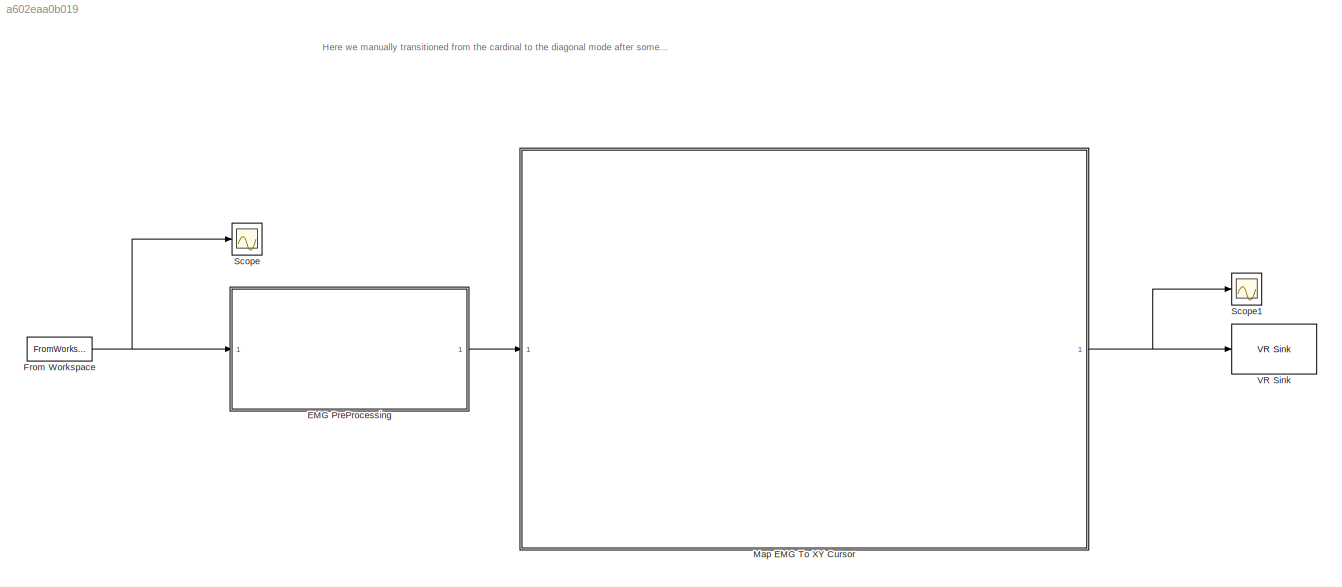
MODEL slx_a602eaa0b019
KIND model
CONFIG AbsTol = auto
CONFIG EnableMultiTasking = off
CONFIG FixedStep = auto
CONFIG InitFcn = disp('Loading EMG data...');\ndata = load('ES2_emg.mat');\n\nsignals = data.ES2_emg.signals; %30001x4\n\n% Create time vector\nTs = 0.001; \n\nnum_samples = size(signals, 1);\n\ntime_vector = (0:num_samples-1)' * Ts;\n\nraw_signals = [time_vector, signals];     % [Time, Data] 30001x5\n\ndisp('Data loaded and time vector created.');\n\n\n%% FILTER DESIGN\n\nFs = 1/Ts;     % 1000 Hz\n\ndisp('Designing filters ...');\n\n% ...<+1156ch>
CONFIG MaxStep = auto
CONFIG MinStep = auto
CONFIG RelTol = 1e-3
CONFIG SampleTimeConstraint = Unconstrained
CONFIG SolverName = VariableStepAuto
CONFIG StartTime = 0.0
CONFIG StopTime = 30
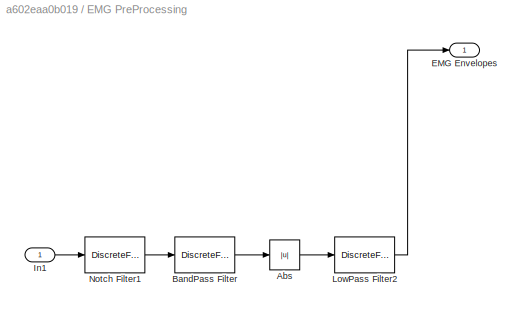
BLOCK [SubSystem] EMG PreProcessing
BLOCK [Abs] EMG PreProcessing/Abs
  SaturateOnIntegerOverflow = off
BLOCK [DiscreteFilter] EMG PreProcessing/BandPass Filter
  CloseFcn = dspblkCoreblockFVToolHelper(gcbh,'close');
  CopyFcn = dspblkCoreblockFVToolHelper(gcbh,'copy');
  DeleteFcn = dspblkCoreblockFVToolHelper(gcbh,'close');
  Denominator = a_band
  InputPortMap = u0
  LoadFcn = dspblkCoreblockFVToolHelper(gcbh,'load');
  ModelCloseFcn = dspblkCoreblockFVToolHelper(gcbh,'close');
  Numerator = b_band
  PostSaveFcn = dspblkCoreblockFVToolHelper(gcbh,'postsave');
  PreSaveFcn = dspblkCoreblockFVToolHelper(gcbh,'presave');
BLOCK [Outport] EMG PreProcessing/EMG Envelopes
BLOCK [Inport] EMG PreProcessing/In1
BLOCK [DiscreteFilter] EMG PreProcessing/LowPass Filter2
  Denominator = a_low
  InputPortMap = u0
  Numerator = b_low
BLOCK [DiscreteFilter] EMG PreProcessing/Notch Filter1
  CloseFcn = dspblkCoreblockFVToolHelper(gcbh,'close');
  CopyFcn = dspblkCoreblockFVToolHelper(gcbh,'copy');
  DeleteFcn = dspblkCoreblockFVToolHelper(gcbh,'close');
  Denominator = a_notch
  InputPortMap = u0
  LoadFcn = dspblkCoreblockFVToolHelper(gcbh,'load');
  ModelCloseFcn = dspblkCoreblockFVToolHelper(gcbh,'close');
  Numerator = b_notch
  PostSaveFcn = dspblkCoreblockFVToolHelper(gcbh,'postsave');
  PreSaveFcn = dspblkCoreblockFVToolHelper(gcbh,'presave');
BLOCK [FromWorkspace] From Workspace
  Interpolate = off
  OutputAfterFinalValue = Holding final value
  SampleTime = 0.001
  VariableName = raw_signals
  ZeroCross = off
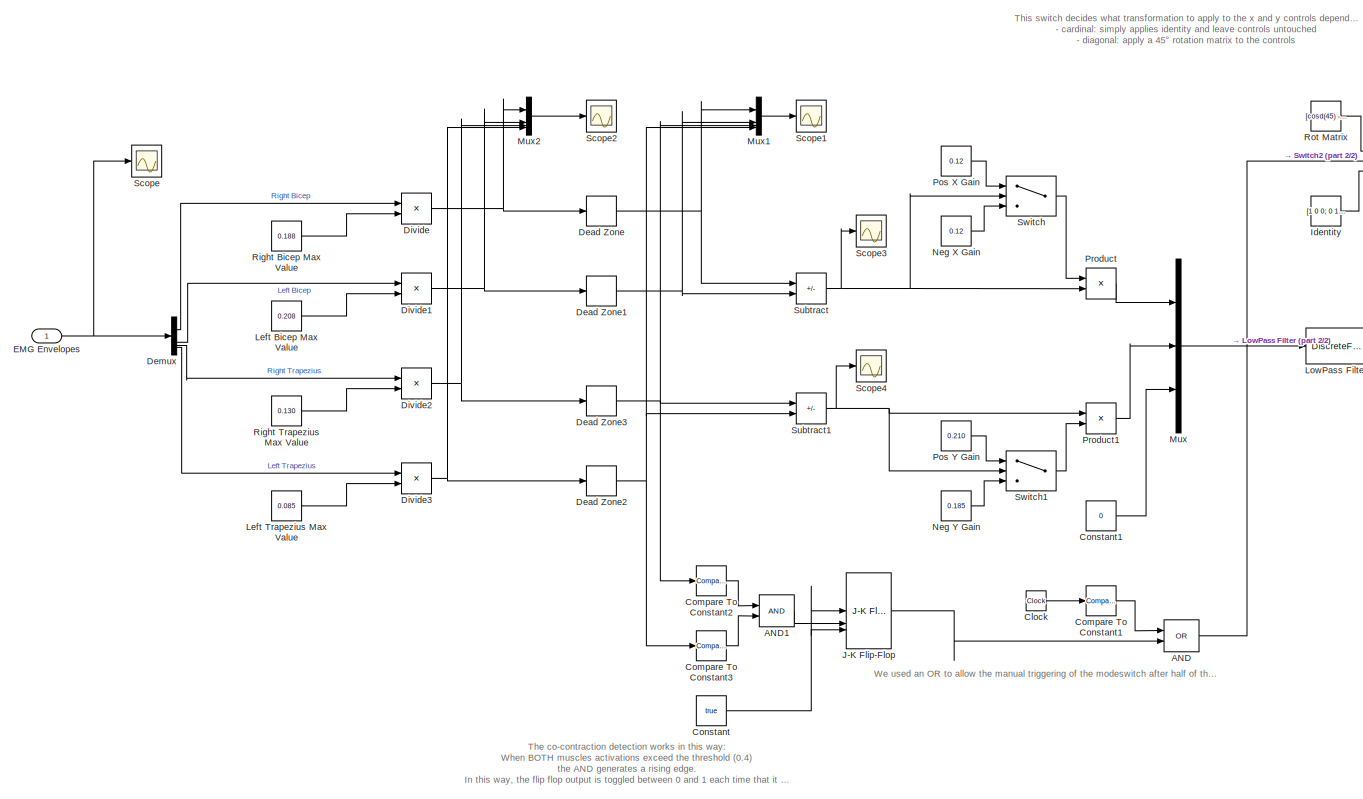
[diagram: Map EMG To XY Cursor - part 1/2, most of the canvas]
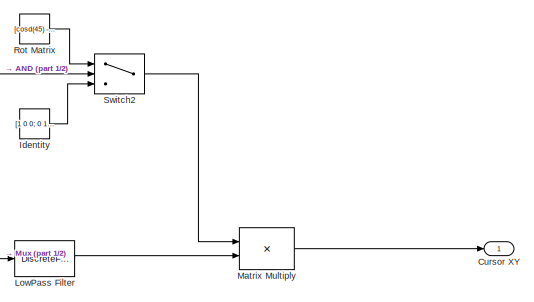
[diagram: Map EMG To XY Cursor - part 2/2, top right region]
BLOCK [SubSystem] Map EMG To XY Cursor
BLOCK [Logic] Map EMG To XY Cursor/AND
  AllPortsSameDT = off
  IconShape = distinctive
  Operator = OR
  OutDataTypeStr = boolean
BLOCK [Logic] Map EMG To XY Cursor/AND1
  AllPortsSameDT = off
  IconShape = distinctive
  OutDataTypeStr = boolean
BLOCK [Clock] Map EMG To XY Cursor/Clock
BLOCK [Reference] Map EMG To XY Cursor/Compare To Constant1  REF=simulink/Logic and Bit
Operations/Compare
To Constant
  SourceBlock = simulink/Logic and Bit\nOperations/Compare\nTo Constant
  SourceType = Compare To Constant
BLOCK [Reference] Map EMG To XY Cursor/Compare To Constant2  REF=simulink/Logic and Bit
Operations/Compare
To Constant
  SourceBlock = simulink/Logic and Bit\nOperations/Compare\nTo Constant
  SourceType = Compare To Constant
BLOCK [Reference] Map EMG To XY Cursor/Compare To Constant3  REF=simulink/Logic and Bit
Operations/Compare
To Constant
  SourceBlock = simulink/Logic and Bit\nOperations/Compare\nTo Constant
  SourceType = Compare To Constant
BLOCK [Constant] Map EMG To XY Cursor/Constant
  Value = true
BLOCK [Constant] Map EMG To XY Cursor/Constant1
  Value = 0
BLOCK [Outport] Map EMG To XY Cursor/Cursor XY
BLOCK [DeadZone] Map EMG To XY Cursor/Dead Zone
  LowerValue = 0
  UpperValue = 0.1
BLOCK [DeadZone] Map EMG To XY Cursor/Dead Zone1
  LowerValue = 0
  UpperValue = 0.1
BLOCK [DeadZone] Map EMG To XY Cursor/Dead Zone2
  LowerValue = 0
  UpperValue = 0.3
BLOCK [DeadZone] Map EMG To XY Cursor/Dead Zone3
  LowerValue = 0
  UpperValue = 0.4
BLOCK [Demux] Map EMG To XY Cursor/Demux
BLOCK [Product] Map EMG To XY Cursor/Divide
  Inputs = */
BLOCK [Product] Map EMG To XY Cursor/Divide1
  Inputs = */
BLOCK [Product] Map EMG To XY Cursor/Divide2
  Inputs = */
BLOCK [Product] Map EMG To XY Cursor/Divide3
  Inputs = */
BLOCK [Inport] Map EMG To XY Cursor/EMG Envelopes
BLOCK [Constant] Map EMG To XY Cursor/Identity
  Value = [1 0 0; 0 1 0; 0 0 1]
BLOCK [Reference] Map EMG To XY Cursor/J-K Flip-Flop  REF=simulink_extras/Flip Flops/J-K
Flip-Flop
  SourceBlock = simulink_extras/Flip Flops/J-K\nFlip-Flop
  SourceType = JKFlipFlop
BLOCK [Constant] Map EMG To XY Cursor/Left Bicep Max Value
  Value = 0.208
BLOCK [Constant] Map EMG To XY Cursor/Left Trapezius Max Value
  Value = 0.085
BLOCK [DiscreteFilter] Map EMG To XY Cursor/LowPass Filter
  CloseFcn = dspblkCoreblockFVToolHelper(gcbh,'close');
  CopyFcn = dspblkCoreblockFVToolHelper(gcbh,'copy');
  DeleteFcn = dspblkCoreblockFVToolHelper(gcbh,'close');
  Denominator = a_low2
  InputPortMap = u0
  LoadFcn = dspblkCoreblockFVToolHelper(gcbh,'load');
  ModelCloseFcn = dspblkCoreblockFVToolHelper(gcbh,'close');
  Numerator = b_low2
  PostSaveFcn = dspblkCoreblockFVToolHelper(gcbh,'postsave');
  PreSaveFcn = dspblkCoreblockFVToolHelper(gcbh,'presave');
BLOCK [Product] Map EMG To XY Cursor/Matrix Multiply
  Multiplication = Matrix(*)
BLOCK [Mux] Map EMG To XY Cursor/Mux
  DisplayOption = bar
  Inputs = 3
BLOCK [Mux] Map EMG To XY Cursor/Mux1
  DisplayOption = bar
BLOCK [Mux] Map EMG To XY Cursor/Mux2
  DisplayOption = bar
BLOCK [Constant] Map EMG To XY Cursor/Neg X Gain
  Value = 0.12
BLOCK [Constant] Map EMG To XY Cursor/Neg Y Gain
  Value = 0.185
BLOCK [Constant] Map EMG To XY Cursor/Pos X Gain
  Value = 0.12
BLOCK [Constant] Map EMG To XY Cursor/Pos Y Gain
  Value = 0.210
BLOCK [Product] Map EMG To XY Cursor/Product
BLOCK [Product] Map EMG To XY Cursor/Product1
BLOCK [Constant] Map EMG To XY Cursor/Right Bicep Max Value
  Value = 0.188
BLOCK [Constant] Map EMG To XY Cursor/Right Trapezius Max Value
  Value = 0.130
BLOCK [Constant] Map EMG To XY Cursor/Rot Matrix
  Value = [cosd(45) -sind(45) 0; sind(45) cosd(45) 0; 0 0 1]
BLOCK [Scope] Map EMG To XY Cursor/Scope
  Floating = off
  NumInputPorts = 1
  ScopeSpecificationString = Simulink.scopes.TimeScopeBlockCfg('CurrentConfiguration', extmgr.ConfigurationSet(extmgr.Configuration('Core','General UI',true),extmgr.Configuration('Core','Source UI',true),extmgr.Configuration('Sources','WiredSimulink',true,'DataLoggingVariableName','ScopeData1'),extmgr.Configuration('Visuals','Time Domain',true,'PlotType','Line','SerializedDisplays',{struct('MinYLimReal','-0.03471','MaxYLimRea...<+2132ch>
BLOCK [Scope] Map EMG To XY Cursor/Scope1
  Floating = off
  NumInputPorts = 1
  ScopeSpecificationString = Simulink.scopes.TimeScopeBlockCfg('CurrentConfiguration', extmgr.ConfigurationSet(extmgr.Configuration('Core','General UI',true),extmgr.Configuration('Core','Source UI',true),extmgr.Configuration('Sources','WiredSimulink',true,'DataLoggingVariableName','ScopeData3'),extmgr.Configuration('Visuals','Time Domain',true,'SerializedDisplays',{struct('MinYLimReal','-0.1247','MaxYLimReal','1.12231','YLabe...<+2192ch>
BLOCK [Scope] Map EMG To XY Cursor/Scope2
  Floating = off
  NumInputPorts = 1
  ScopeSpecificationString = Simulink.scopes.TimeScopeBlockCfg('CurrentConfiguration', extmgr.ConfigurationSet(extmgr.Configuration('Core','General UI',true),extmgr.Configuration('Core','Source UI',true),extmgr.Configuration('Sources','WiredSimulink',true,'DataLoggingVariableName','ScopeData3'),extmgr.Configuration('Visuals','Time Domain',true,'PlotType','Line','SerializedDisplays',{struct('MinYLimReal','-0.12176','MaxYLimRea...<+2211ch>
BLOCK [Scope] Map EMG To XY Cursor/Scope3
  Floating = off
  NumInputPorts = 1
  ScopeSpecificationString = Simulink.scopes.TimeScopeBlockCfg('CurrentConfiguration', extmgr.ConfigurationSet(extmgr.Configuration('Core','General UI',true),extmgr.Configuration('Core','Source UI',true),extmgr.Configuration('Sources','WiredSimulink',true,'DataLoggingVariableName','ScopeData5'),extmgr.Configuration('Visuals','Time Domain',true,'SerializedDisplays',{struct('MinYLimReal','-1.04981','MaxYLimReal','1.03377','YLab...<+2112ch>
BLOCK [Scope] Map EMG To XY Cursor/Scope4
  Floating = off
  NumInputPorts = 1
  ScopeSpecificationString = Simulink.scopes.TimeScopeBlockCfg('CurrentConfiguration', extmgr.ConfigurationSet(extmgr.Configuration('Core','General UI',true),extmgr.Configuration('Core','Source UI',true),extmgr.Configuration('Sources','WiredSimulink',true,'DataLoggingVariableName','ScopeData6'),extmgr.Configuration('Visuals','Time Domain',true,'SerializedDisplays',{struct('MinYLimReal','-0.72831','MaxYLimReal','0.66413','YLab...<+2443ch>
BLOCK [Sum] Map EMG To XY Cursor/Subtract
  IconShape = rectangular
  Inputs = +-
BLOCK [Sum] Map EMG To XY Cursor/Subtract1
  IconShape = rectangular
  Inputs = +-
BLOCK [Switch] Map EMG To XY Cursor/Switch
  InputSameDT = off
  SaturateOnIntegerOverflow = off
BLOCK [Switch] Map EMG To XY Cursor/Switch1
  InputSameDT = off
  SaturateOnIntegerOverflow = off
BLOCK [Switch] Map EMG To XY Cursor/Switch2
  Criteria = u2 > Threshold
  InputSameDT = off
  SaturateOnIntegerOverflow = off
BLOCK [Scope] Scope
  Floating = off
  NumInputPorts = 1
  ScopeSpecificationString = Simulink.scopes.TimeScopeBlockCfg('CurrentConfiguration', extmgr.ConfigurationSet(extmgr.Configuration('Core','General UI',true),extmgr.Configuration('Core','Source UI',true),extmgr.Configuration('Sources','WiredSimulink',true,'DataLoggingVariableName','ScopeData2'),extmgr.Configuration('Visuals','Time Domain',true,'SerializedDisplays',{struct('MinYLimReal','-1.20466','MaxYLimReal','1.72766','YLab...<+1691ch>
BLOCK [Scope] Scope1
  Floating = off
  NumInputPorts = 1
  ScopeSpecificationString = Simulink.scopes.TimeScopeBlockCfg('CurrentConfiguration', extmgr.ConfigurationSet(extmgr.Configuration('Core','General UI',true),extmgr.Configuration('Core','Source UI',true),extmgr.Configuration('Sources','WiredSimulink',true),extmgr.Configuration('Visuals','Time Domain',true,'SerializedDisplays',{struct('MinYLimReal','-0.12422','MaxYLimReal','0.12055','YLabelReal','','MinYLimMag','0.00000','MaxY...<+1988ch>
BLOCK [Reference] VR Sink  REF=vrlib/VR Sink
  InstantiateOnLoad = on
  SourceBlock = vrlib/VR Sink
  SourceType = Virtual Reality Sink
ANNOTATION (root): Here we manually transitioned from the cardinal to the diagonal mode after some time in order to reach all the balls, anyway in a real contest we would for example use the cocontraction of the trapezius muscles to toggle between the two different modalities. While never actually used in this specific case as there are no clean co-contractions in the data, we implemented a simple co-contraction det...<+49ch>
ANNOTATION Map EMG To XY Cursor: We used an OR to allow the manual triggering of the modeswitch after half of the simulation has passed if a co-contraction is not detected, as is the case with this specific data
ANNOTATION Map EMG To XY Cursor: The co-contraction detection works in this way: When BOTH muscles activations exceed the threshold (0.4) the AND generates a rising edge. In this way, the flip flop output is toggled between 0 and 1 each time that it receives a rising edge signal (and is not triggered instead by the falling edge one)
ANNOTATION Map EMG To XY Cursor: This switch decides what transformation to apply to the x and y controls depending on the mode: - cardinal: simply applies identity and leave controls untouched - diagonal: apply a 45° rotation matrix to the controls
LINE EMG PreProcessing/Abs:1 -> EMG PreProcessing/LowPass Filter2:1
LINE EMG PreProcessing/BandPass Filter:1 -> EMG PreProcessing/Abs:1
LINE EMG PreProcessing/In1:1 -> EMG PreProcessing/Notch Filter1:1
LINE EMG PreProcessing/LowPass Filter2:1 -> EMG PreProcessing/EMG Envelopes:1
LINE EMG PreProcessing/Notch Filter1:1 -> EMG PreProcessing/BandPass Filter:1
LINE EMG PreProcessing:1 -> Map EMG To XY Cursor:1
NET From Workspace:1 -> EMG PreProcessing:1, Scope:1
LINE Map EMG To XY Cursor/AND1:1 -> Map EMG To XY Cursor/J-K Flip-Flop:2
LINE Map EMG To XY Cursor/AND:1 -> Map EMG To XY Cursor/Switch2:2
LINE Map EMG To XY Cursor/Clock:1 -> Map EMG To XY Cursor/Compare To Constant1:1
LINE Map EMG To XY Cursor/Compare To Constant1:1 -> Map EMG To XY Cursor/AND:1
LINE Map EMG To XY Cursor/Compare To Constant2:1 -> Map EMG To XY Cursor/AND1:1
LINE Map EMG To XY Cursor/Compare To Constant3:1 -> Map EMG To XY Cursor/AND1:2
LINE Map EMG To XY Cursor/Constant1:1 -> Map EMG To XY Cursor/Mux:3
NET Map EMG To XY Cursor/Constant:1 -> Map EMG To XY Cursor/J-K Flip-Flop:1, Map EMG To XY Cursor/J-K Flip-Flop:3
NET Map EMG To XY Cursor/Dead Zone1:1 -> Map EMG To XY Cursor/Mux1:2, Map EMG To XY Cursor/Subtract:2
NET Map EMG To XY Cursor/Dead Zone2:1 -> Map EMG To XY Cursor/Compare To Constant3:1, Map EMG To XY Cursor/Mux1:4, Map EMG To XY Cursor/Subtract1:2
NET Map EMG To XY Cursor/Dead Zone3:1 -> Map EMG To XY Cursor/Compare To Constant2:1, Map EMG To XY Cursor/Mux1:3, Map EMG To XY Cursor/Subtract1:1
NET Map EMG To XY Cursor/Dead Zone:1 -> Map EMG To XY Cursor/Mux1:1, Map EMG To XY Cursor/Subtract:1
LINE Map EMG To XY Cursor/Demux:1 -> Map EMG To XY Cursor/Divide:1
LINE Map EMG To XY Cursor/Demux:2 -> Map EMG To XY Cursor/Divide1:1
LINE Map EMG To XY Cursor/Demux:3 -> Map EMG To XY Cursor/Divide2:1
LINE Map EMG To XY Cursor/Demux:4 -> Map EMG To XY Cursor/Divide3:1
NET Map EMG To XY Cursor/Divide1:1 -> Map EMG To XY Cursor/Dead Zone1:1, Map EMG To XY Cursor/Mux2:2
NET Map EMG To XY Cursor/Divide2:1 -> Map EMG To XY Cursor/Dead Zone3:1, Map EMG To XY Cursor/Mux2:3
NET Map EMG To XY Cursor/Divide3:1 -> Map EMG To XY Cursor/Dead Zone2:1, Map EMG To XY Cursor/Mux2:4
NET Map EMG To XY Cursor/Divide:1 -> Map EMG To XY Cursor/Dead Zone:1, Map EMG To XY Cursor/Mux2:1
NET Map EMG To XY Cursor/EMG Envelopes:1 -> Map EMG To XY Cursor/Demux:1, Map EMG To XY Cursor/Scope:1
LINE Map EMG To XY Cursor/Identity:1 -> Map EMG To XY Cursor/Switch2:3
LINE Map EMG To XY Cursor/J-K Flip-Flop:1 -> Map EMG To XY Cursor/AND:2
LINE Map EMG To XY Cursor/Left Bicep Max Value:1 -> Map EMG To XY Cursor/Divide1:2
LINE Map EMG To XY Cursor/Left Trapezius Max Value:1 -> Map EMG To XY Cursor/Divide3:2
LINE Map EMG To XY Cursor/LowPass Filter:1 -> Map EMG To XY Cursor/Matrix Multiply:2
LINE Map EMG To XY Cursor/Matrix Multiply:1 -> Map EMG To XY Cursor/Cursor XY:1
LINE Map EMG To XY Cursor/Mux1:1 -> Map EMG To XY Cursor/Scope1:1
LINE Map EMG To XY Cursor/Mux2:1 -> Map EMG To XY Cursor/Scope2:1
LINE Map EMG To XY Cursor/Mux:1 -> Map EMG To XY Cursor/LowPass Filter:1
LINE Map EMG To XY Cursor/Neg X Gain:1 -> Map EMG To XY Cursor/Switch:3
LINE Map EMG To XY Cursor/Neg Y Gain:1 -> Map EMG To XY Cursor/Switch1:3
LINE Map EMG To XY Cursor/Pos X Gain:1 -> Map EMG To XY Cursor/Switch:1
LINE Map EMG To XY Cursor/Pos Y Gain:1 -> Map EMG To XY Cursor/Switch1:1
LINE Map EMG To XY Cursor/Product1:1 -> Map EMG To XY Cursor/Mux:2
LINE Map EMG To XY Cursor/Product:1 -> Map EMG To XY Cursor/Mux:1
LINE Map EMG To XY Cursor/Right Bicep Max Value:1 -> Map EMG To XY Cursor/Divide:2
LINE Map EMG To XY Cursor/Right Trapezius Max Value:1 -> Map EMG To XY Cursor/Divide2:2
LINE Map EMG To XY Cursor/Rot Matrix:1 -> Map EMG To XY Cursor/Switch2:1
NET Map EMG To XY Cursor/Subtract1:1 -> Map EMG To XY Cursor/Product1:1, Map EMG To XY Cursor/Scope4:1, Map EMG To XY Cursor/Switch1:2
NET Map EMG To XY Cursor/Subtract:1 -> Map EMG To XY Cursor/Product:2, Map EMG To XY Cursor/Scope3:1, Map EMG To XY Cursor/Switch:2
LINE Map EMG To XY Cursor/Switch1:1 -> Map EMG To XY Cursor/Product1:2
LINE Map EMG To XY Cursor/Switch2:1 -> Map EMG To XY Cursor/Matrix Multiply:1
LINE Map EMG To XY Cursor/Switch:1 -> Map EMG To XY Cursor/Product:1
NET Map EMG To XY Cursor:1 -> Scope1:1, VR Sink:1
note: NET lines group one-source signal fan-out (src -> all destinations, sorted); 1:1 wires keep LINE
